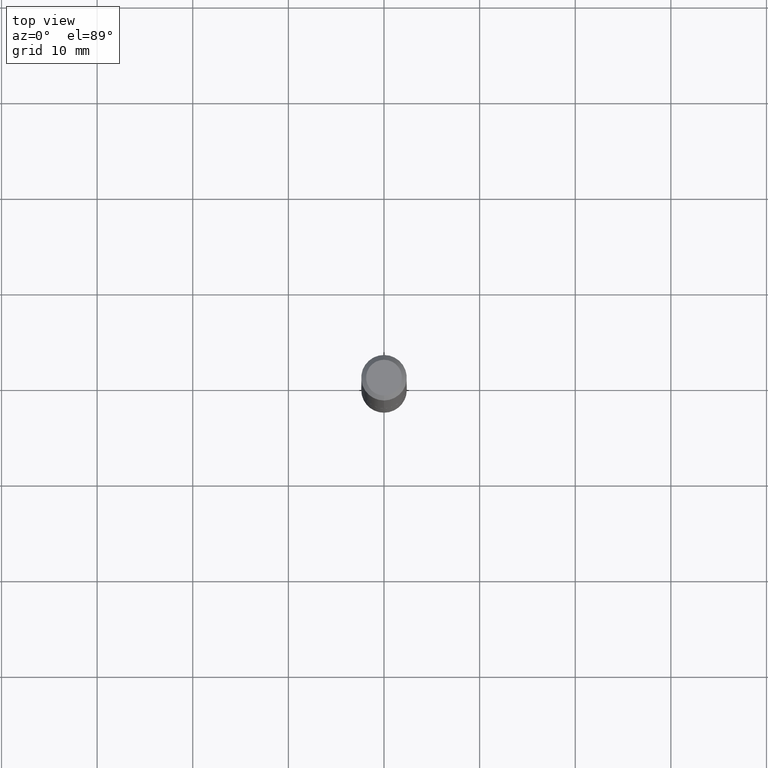
[diagram: clean part render]
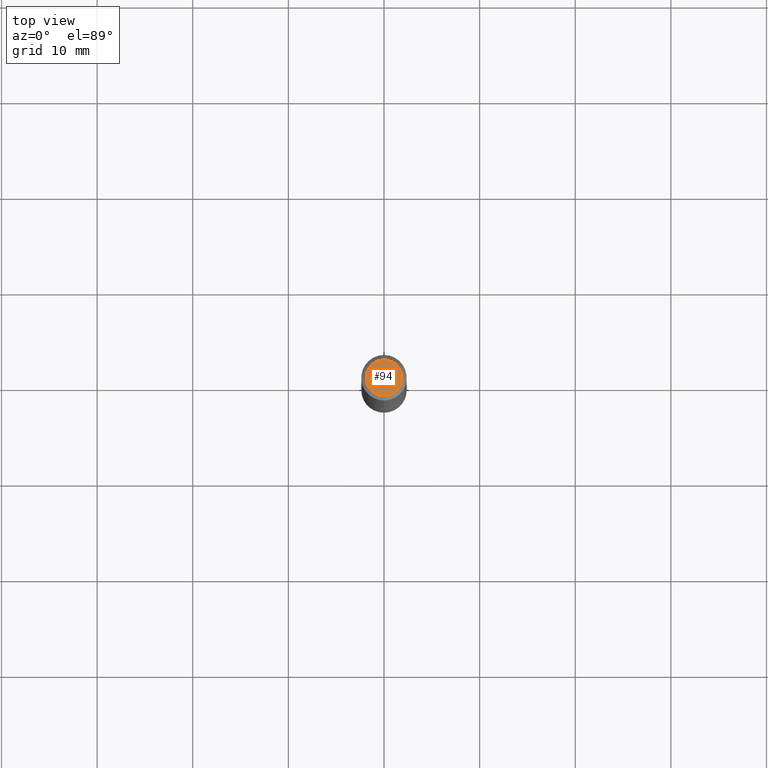
[diagram: same view with one face highlighted and labeled with its STEP entity id]
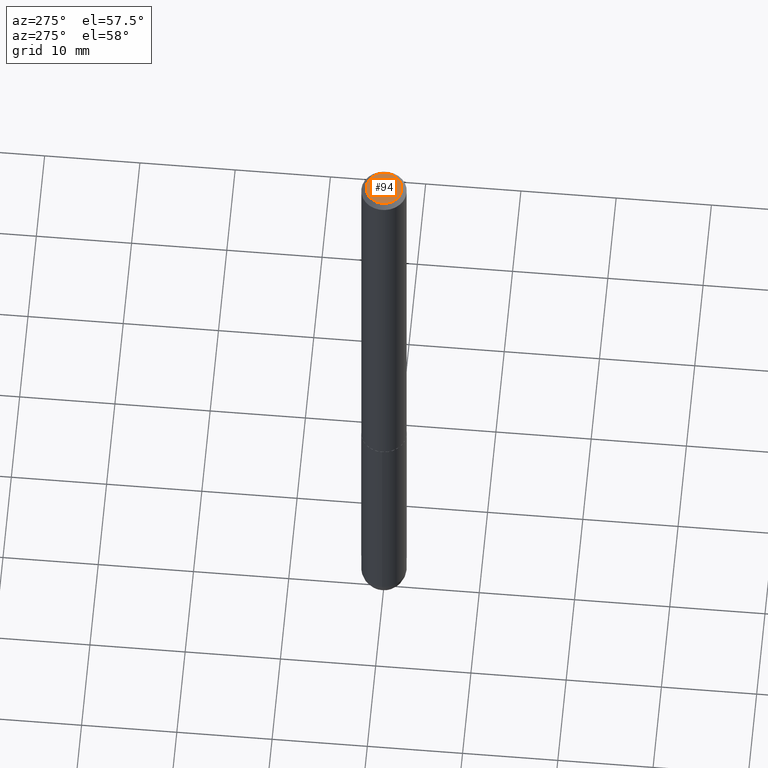
[diagram: same view with one face highlighted and labeled with its STEP entity id]
A machine part, top view. The second image highlights one B-rep face of the part: STEP entity #94.
A second angle (auxiliary view) of the same face is appended — the face is thin or edge-on in the first view.
In plain terms, the highlighted planar face has unit normal (0, -0, -1).
Its self-contained STEP definition (entity closure, byte-faithful):
#23 = CIRCLE ( 'NONE', #210, 0.07374999999999973244 ) ;
#42 = DIRECTION ( 'NONE',  ( -2.443889347424833507E-29, 3.493743213685109349E-15, 1.000000000000000000 ) ) ;
#48 = VERTEX_POINT ( 'NONE', #247 ) ;
#75 = DIRECTION ( 'NONE',  ( 2.443889347424833227E-29, -3.493743213685109349E-15, -1.000000000000000000 ) ) ;
#93 = EDGE_CURVE ( 'NONE', #48, #283, #23, .T. ) ;
#94 = ADVANCED_FACE ( 'NONE', ( #385 ), #153, .F. ) ;
#153 = PLANE ( 'NONE',  #252 ) ;
#163 = AXIS2_PLACEMENT_3D ( 'NONE', #390, #42, #265 ) ;
#185 = EDGE_CURVE ( 'NONE', #283, #48, #405, .T. ) ;
#210 = AXIS2_PLACEMENT_3D ( 'NONE', #358, #313, #377 ) ;
#247 = CARTESIAN_POINT ( 'NONE',  ( -5.745667073133644707E-16, -0.07374999999999973244, 5.139411246848953487E-16 ) ) ;
#252 = AXIS2_PLACEMENT_3D ( 'NONE', #409, #75, #363 ) ;
#265 = DIRECTION ( 'NONE',  ( -6.982962677686265922E-15, -1.000000000000000000, 3.493743213685109349E-15 ) ) ;
#283 = VERTEX_POINT ( 'NONE', #314 ) ;
#291 = ORIENTED_EDGE ( 'NONE', *, *, #185, .T. ) ;
#313 = DIRECTION ( 'NONE',  ( -2.443889347424833507E-29, 3.493743213685109349E-15, 1.000000000000000000 ) ) ;
#314 = CARTESIAN_POINT ( 'NONE',  ( 5.848231242562241073E-16, 0.07374999999999973244, -1.385999333656328335E-18 ) ) ;
#358 = CARTESIAN_POINT ( 'NONE',  ( -6.263140054069467056E-45, 8.953679954177059313E-31, 2.562775626756195084E-16 ) ) ;
#363 = DIRECTION ( 'NONE',  ( 6.982962677686265922E-15, 1.000000000000000000, -3.493743213685109349E-15 ) ) ;
#365 = EDGE_LOOP ( 'NONE', ( #291, #386 ) ) ;
#377 = DIRECTION ( 'NONE',  ( -6.982962677686265922E-15, -1.000000000000000000, 3.493743213685109349E-15 ) ) ;
#385 = FACE_OUTER_BOUND ( 'NONE', #365, .T. ) ;
#386 = ORIENTED_EDGE ( 'NONE', *, *, #93, .T. ) ;
#390 = CARTESIAN_POINT ( 'NONE',  ( -6.263140054069467056E-45, 8.953679954177059313E-31, 2.562775626756195084E-16 ) ) ;
#405 = CIRCLE ( 'NONE', #163, 0.07374999999999973244 ) ;
#409 = CARTESIAN_POINT ( 'NONE',  ( 5.149934974793602175E-16, 0.07374999999999973244, -1.295247806714661107E-16 ) ) ;